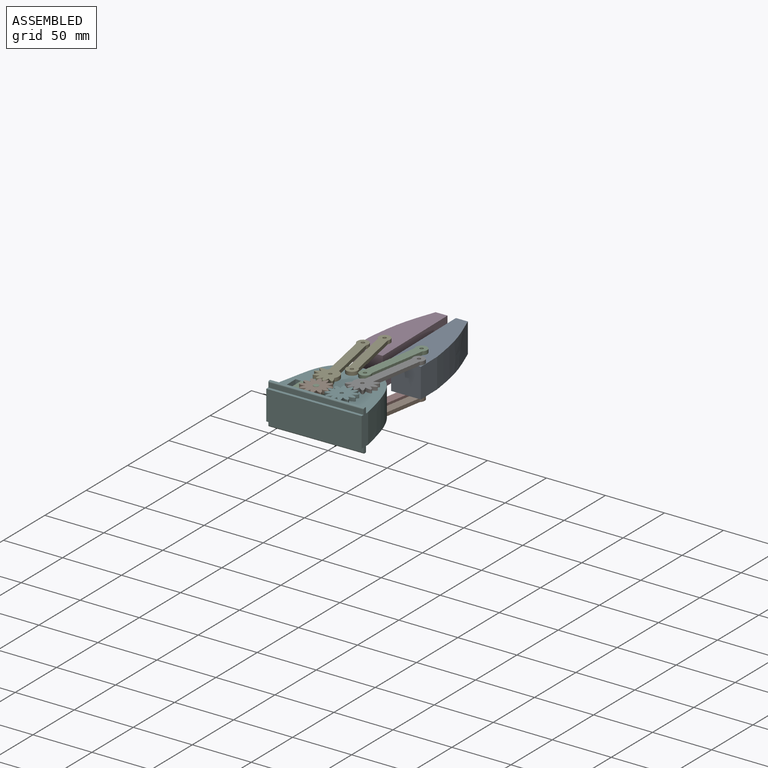
[diagram: assembled view]
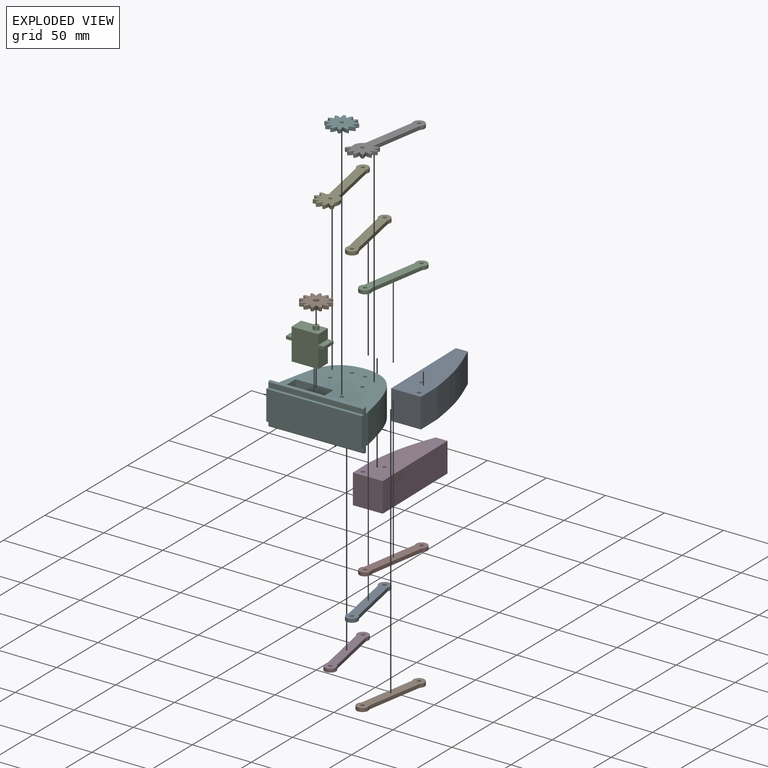
[diagram: exploded view]
GUIDED TOUR — MATED ASSEMBLY (Onshape document 4a42c423ff8570daccb39947, AutoMate assembly 4a42c423ff8570daccb39947_ed752e8bc00205b578661c52_602a29fdc4c7ccb54e213092_default)

This assembly has 14 components, labeled P0..P13 below (a component is one placed occurrence of a part; the same part can appear more than once), held together by 19 mates. A mate is a constraint between two components; its type names the relative motion it leaves free:
  FASTENED — locks the two components together rigidly (no relative motion),
  REVOLUTE — leaves rotation about the listed axis free (a hinge).
Axis/direction vectors are unit vectors and 'through' points are millimeter coordinates, both in the assembly's world frame.

MATES
  1. REVOLUTE "Revolute 11": P7 <-> P5, axis (0.000, 0.000, 1.000) through (8.56, -24.51, -53.41) mm
  2. REVOLUTE "Revolute 4": P8 <-> P11, axis (0.000, 0.000, 1.000) through (-13.23, 30.29, -53.41) mm
  3. REVOLUTE "Revolute 6": P4 <-> P5, axis (0.000, 0.000, -1.000) through (-10.23, -39.77, -28.41) mm
  4. FASTENED "Fastened 1": P10 <-> P5, direction (0.000, 0.000, 1.000) through (-1.37, -55.25, -39.21) mm
  5. REVOLUTE "Revolute 5": P4 <-> P11, axis (0.000, 0.000, -1.000) through (-21.02, 15.18, -28.41) mm
  6. REVOLUTE "Revolute 12": P8 <-> P5, axis (0.000, 0.000, 1.000) through (-2.44, -24.66, -53.41) mm
  7. REVOLUTE "Revolute 16": P9 <-> P0, axis (0.000, 0.000, 1.000) through (26.03, 15.83, -53.41) mm
  8. REVOLUTE "Revolute 2": P11 <-> P12, axis (0.000, 0.000, 1.000) through (-13.23, 30.29, -28.41) mm
  9. REVOLUTE "Revolute 19": P1 <-> P10, axis (0.000, 0.000, -1.000) through (-7.18, -61.23, -28.41) mm
  10. REVOLUTE "Revolute 8": P6 <-> P0, axis (0.000, 0.000, -1.000) through (26.03, 15.83, -28.41) mm
  11. REVOLUTE "Revolute 14": P3 <-> P11, axis (0.000, 0.000, 1.000) through (-21.02, 15.18, -53.41) mm
  12. REVOLUTE "Revolute 3": P7 <-> P0, axis (0.000, 0.000, 1.000) through (17.83, 30.72, -53.41) mm
  13. REVOLUTE "Revolute 9": P12 <-> P5, axis (0.000, 0.000, -1.000) through (-2.44, -24.66, -28.41) mm
  14. REVOLUTE "Revolute 18": P13 <-> P5, axis (0.000, 0.000, -1.000) through (14.31, -60.93, -28.41) mm
  15. REVOLUTE "Revolute 10": P2 <-> P5, axis (0.000, 0.000, -1.000) through (8.56, -24.51, -28.41) mm
  16. REVOLUTE "Revolute 13": P3 <-> P5, axis (0.000, 0.000, -1.000) through (-10.23, -39.77, -53.41) mm
  17. REVOLUTE "Revolute 1": P2 <-> P0, axis (0.000, 0.000, -1.000) through (17.83, 30.72, -28.41) mm
  18. REVOLUTE "Revolute 7": P6 <-> P5, axis (0.000, 0.000, -1.000) through (16.77, -39.40, -28.41) mm
  19. REVOLUTE "Revolute 15": P9 <-> P5, axis (0.000, 0.000, 1.000) through (16.77, -39.40, -53.41) mm

ASSEMBLY ORDER
  1. P5 — the base component [order verified]
  2. P10 [order verified]
  3. P1 [order verified]
  4. P2 [order verified]
  5. P0 [order verified]
  6. P11 [order verified]
  7. P12 [order verified]
  8. P4 [order verified]
  9. P6 [order verified]
  10. P13 [order verified]
  11. P9 [order verified]
  12. P7 [order verified]
  13. P8 [order verified]
  14. P3 [order verified]
(P1 verified with a relaxed clearance tolerance: the source model stores slight part interference there.)
Order-tag legend:
  [order verified] — this step's position reverses a verified removal order: the component was checked to insert without passing through the ones already placed.

Of the 14 components, 6 carry the full construction recipe — the FeatureScript program that regenerates the part's solid from scratch; the rest are supplied as boundary geometry only.
Because this assembly has more than 12 components, the tour below covers the 12 most significant ones individually (every recipe-attached component first, then the largest by part volume), in assembly order; the remaining 2 are summarized together in a grouped section at the end.
Each toured component is shown spotlighted twice — in the assembled view, then in the exploded view, where a leader line traces a displaced component back to its assembled socket (saturated green if recipe-attached, orange if geometry-only; every other component desaturated gray) — followed by its recipe or geometry summary and the mates that hold it.
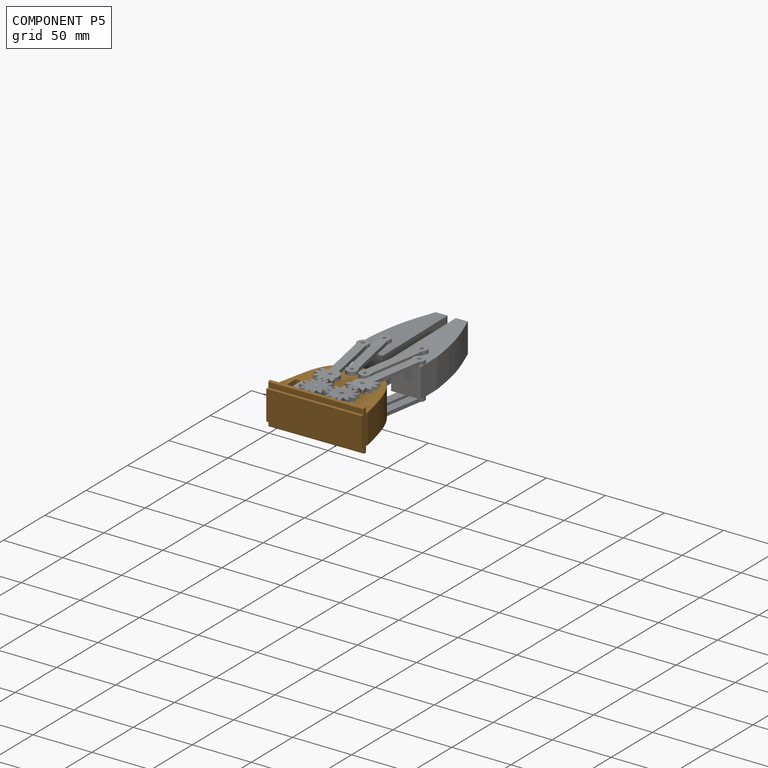
[diagram: component P5 — assembled]
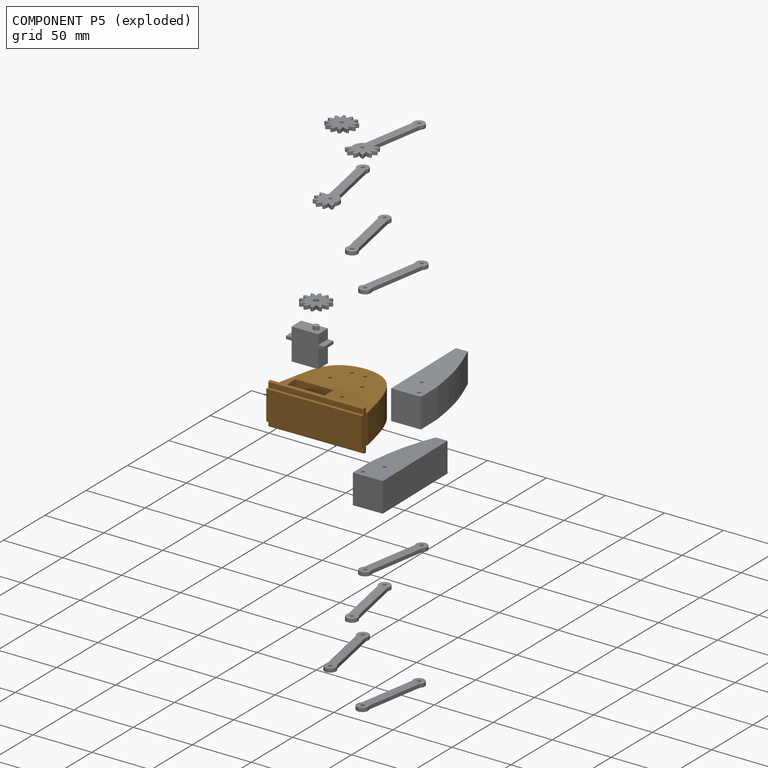
[diagram: component P5 — exploded]
COMPONENT P5 — geometry summary (no construction recipe available for this part):
  bounding box: 80.0 x 67.3 x 35.0 mm
  B-rep topology: 1 solid, 31 faces, 174 edges
  volume: 99086 mm^3 (53% of its bounding box)
Held by: REVOLUTE mate "Revolute 11" to P7; REVOLUTE mate "Revolute 6" to P4; FASTENED mate "Fastened 1" to P10; REVOLUTE mate "Revolute 12" to P8; REVOLUTE mate "Revolute 9" to P12; REVOLUTE mate "Revolute 18" to P13; REVOLUTE mate "Revolute 10" to P2; REVOLUTE mate "Revolute 13" to P3; REVOLUTE mate "Revolute 7" to P6; REVOLUTE mate "Revolute 15" to P9.
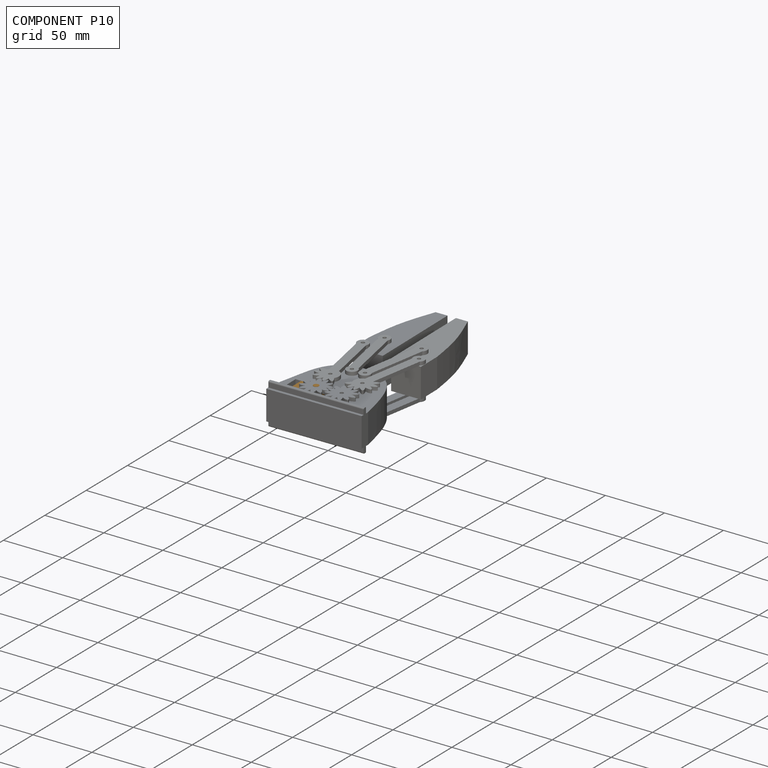
[diagram: component P10 — assembled]
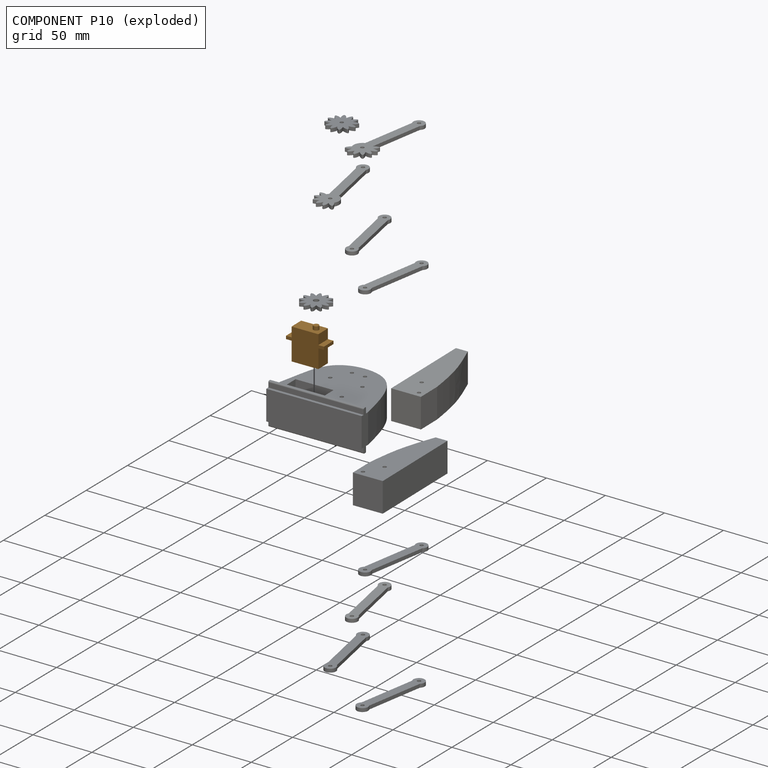
[diagram: component P10 — exploded]
COMPONENT P10 — geometry summary (no construction recipe available for this part):
  bounding box: 31.9 x 29.9 x 11.8 mm
  B-rep topology: 1 solid, 16 faces, 78 edges
  volume: 7419 mm^3 (66% of its bounding box)
  symmetry: mirror-symmetric across its y mid-plane
Held by: FASTENED mate "Fastened 1" to P5; REVOLUTE mate "Revolute 19" to P1.
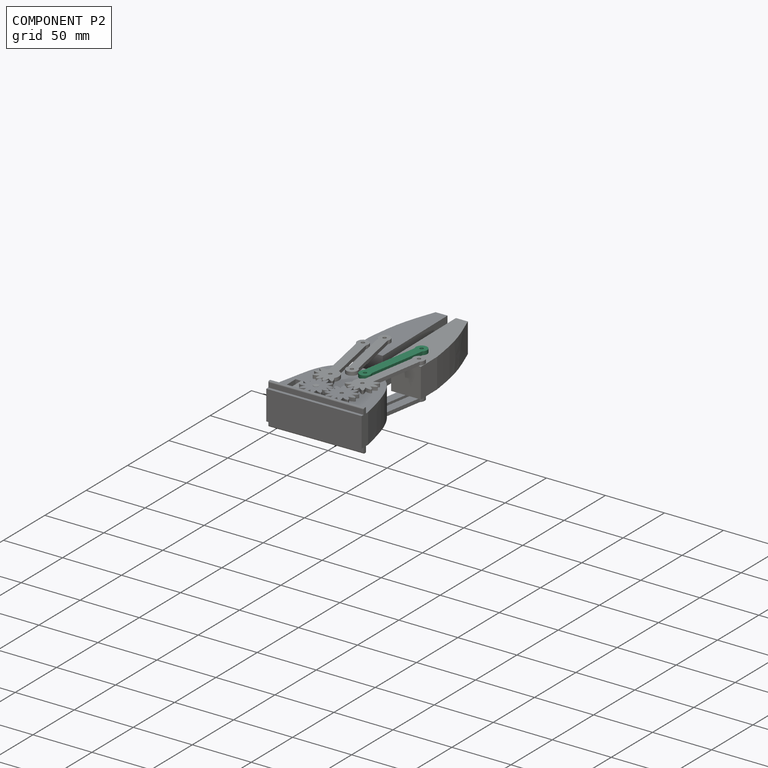
[diagram: component P2 — assembled]
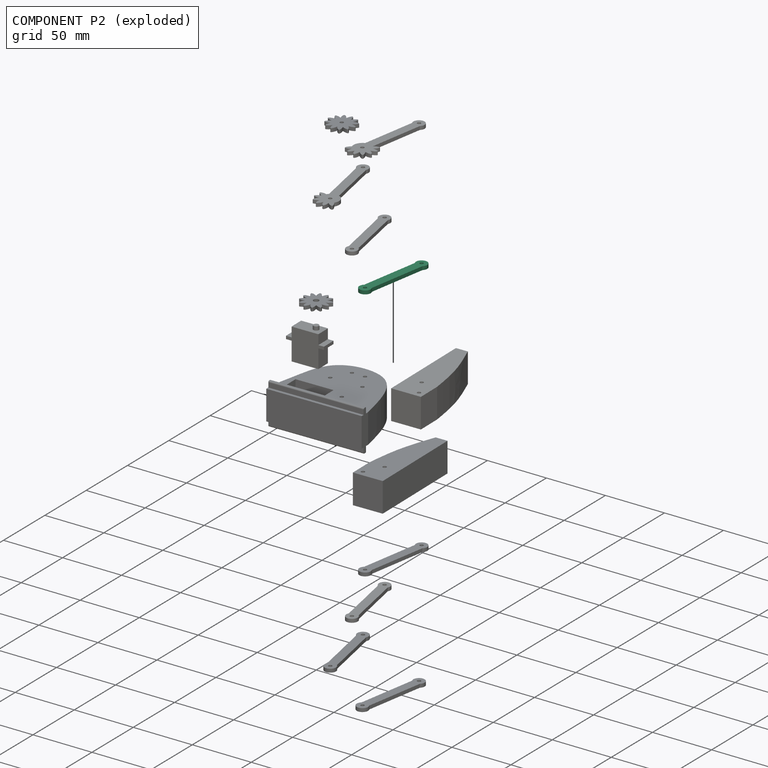
[diagram: component P2 — exploded]
COMPONENT P2 — recipe-attached (CADFS 00431648, mesh-verified: the recipe's output STEP matches this component's geometry to below the mesh-comparison resolution (tessellation chordal tolerance ~0.0996 mm)).
Held by: REVOLUTE mate "Revolute 10" to P5; REVOLUTE mate "Revolute 1" to P0.
Construction recipe (FeatureScript — the CAD program that rebuilds this solid; sketch coordinates are in the units given by the * unit suffixes, e.g. mm):

FeatureScript 1511;
import(path : "onshape/std/geometry.fs", version : "1511.0");
import(path : "onshape/std/common.fs", version : "1511.0");
const mm = millimeter;
const VERTEX = EntityType.VERTEX;
const EDGE = EntityType.EDGE;
const FACE = EntityType.FACE;
const BODY = EntityType.BODY;
function v(x, y){return vector(x, y);}
function OD(order){return orderDisambiguation(order);}
function OSD(set){return originalSetDisambiguation(set);}
function TD(topology){return topologyDisambiguation(topology);}
function TDD(query){return trueDependencyDisambiguation(query);}
function sQuery(a, b, c) {return sketchEntityQuery(a, b, c);}

annotation { "Feature Type Name" : "Feature", "Feature Type Description" : "" }
export const myFeature = defineFeature(function(context is Context, id is Id, definition is map)
    precondition{}
    {
        {
            var Q0;
            Q0=qCreatedBy(makeId("Top.planeOp"),FACE);
            var sketch = newSketch(context, id + "F0", { "sketchPlane" : qUnion([Q0])});
            skLineSegment(sketch, "E0.bottom", {"start": v(0, 0) * mm, "end": v(7.5, 0) * mm, "construction": true});
            skLineSegment(sketch, "E0.top", {"start": v(0, 50) * mm, "end": v(7.5, 50) * mm, "construction": true});
            skLineSegment(sketch, "E0.left", {"start": v(0, 0) * mm, "end": v(0, 50) * mm});
            skLineSegment(sketch, "E0.right", {"start": v(7.5, 0) * mm, "end": v(7.5, 50) * mm});
            skLineSegment(sketch, "E1", {"start": v(3.75, 0) * mm, "end": v(3.75, -3) * mm, "construction": true});
            skArc(sketch, "E2", {"start": v(0, 0) * mm, "mid": v(3.75, -7.8) * mm, "end": v(7.5, 0) * mm});
            skArc(sketch, "E3", {"start": v(7.5, 0) * mm, "mid": v(3.75, 1.8) * mm, "end": v(0, 0) * mm, "construction": true});
            skCircle(sketch, "E4", {"center": v(3.75, -3) * mm, "radius": 1.5 * mm});
            skLineSegment(sketch, "E5", {"start": v(3.75, 50) * mm, "end": v(3.75, 53) * mm, "construction": true});
            skCircle(sketch, "E6", {"center": v(3.75, 53) * mm, "radius": 1.5 * mm});
            skArc(sketch, "E7", {"start": v(0, 50) * mm, "mid": v(3.75, 48.2) * mm, "end": v(7.5, 50) * mm, "construction": true});
            skArc(sketch, "E8", {"start": v(7.5, 50) * mm, "mid": v(3.75, 57.8) * mm, "end": v(0, 50) * mm});
            skSolve(sketch);
        }
        {
            var Q0;
            Q0=makeQuery(id+"F0.imprint","IMPRINT",FACE,{"disambiguationData":[TD([[makeQuery(id+"F0.imprint","IMPRINT",EDGE,{"derivedFrom":sQuery(id+"F0.wireOp",EDGE,"E0.left")}),-1.0]])]});
            extrude(context, id + "F1", {"entities" : qUnion([Q0]), "depth" : 3 * mm});
        }
    });
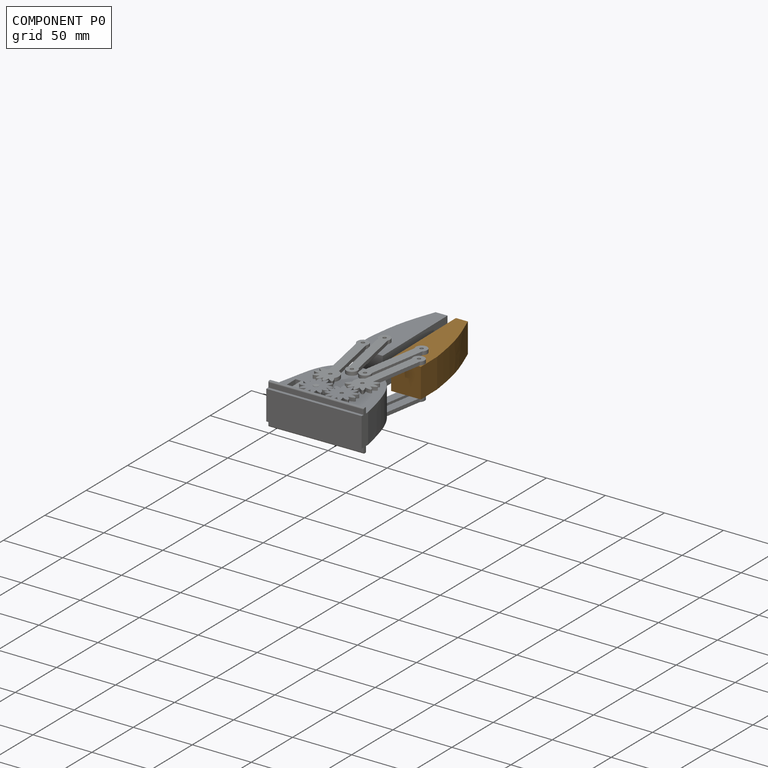
[diagram: component P0 — assembled]
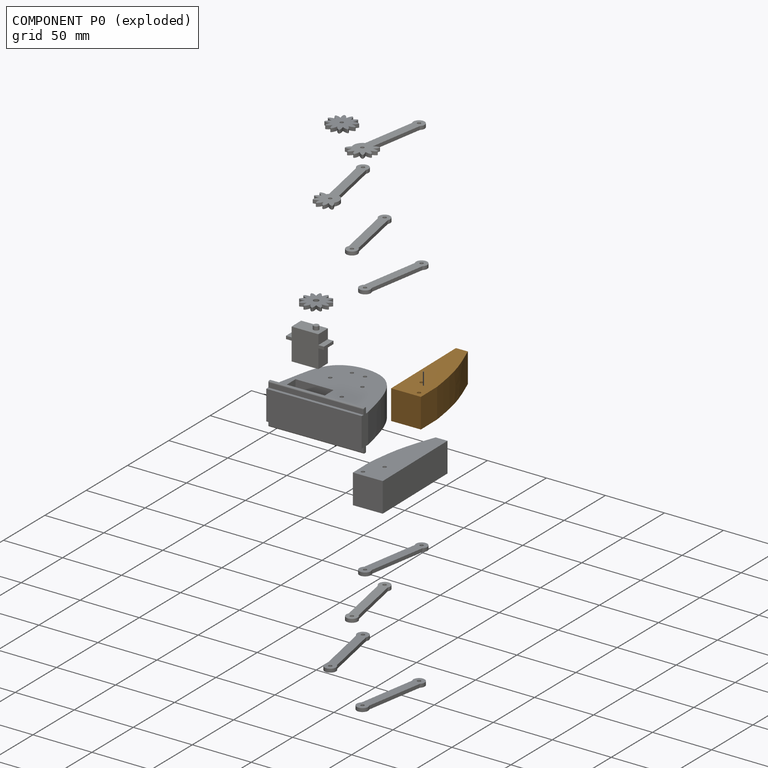
[diagram: component P0 — exploded]
COMPONENT P0 — geometry summary (no construction recipe available for this part):
  bounding box: 80.0 x 25.0 x 25.0 mm
  B-rep topology: 1 solid, 9 faces, 42 edges
  volume: 40740 mm^3 (81% of its bounding box)
  symmetry: mirror-symmetric across its z mid-plane
Held by: REVOLUTE mate "Revolute 16" to P9; REVOLUTE mate "Revolute 8" to P6; REVOLUTE mate "Revolute 3" to P7; REVOLUTE mate "Revolute 1" to P2.
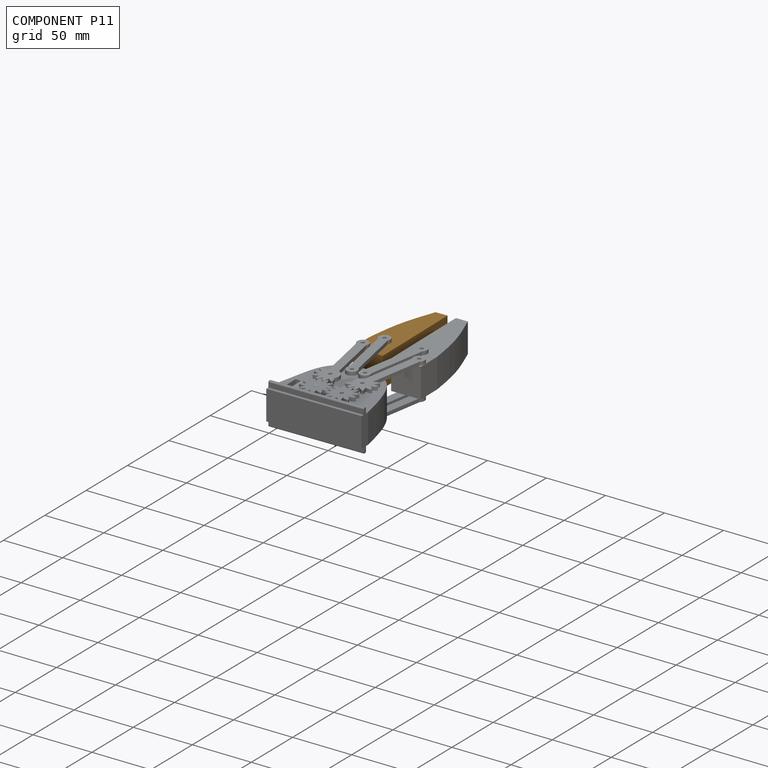
[diagram: component P11 — assembled]
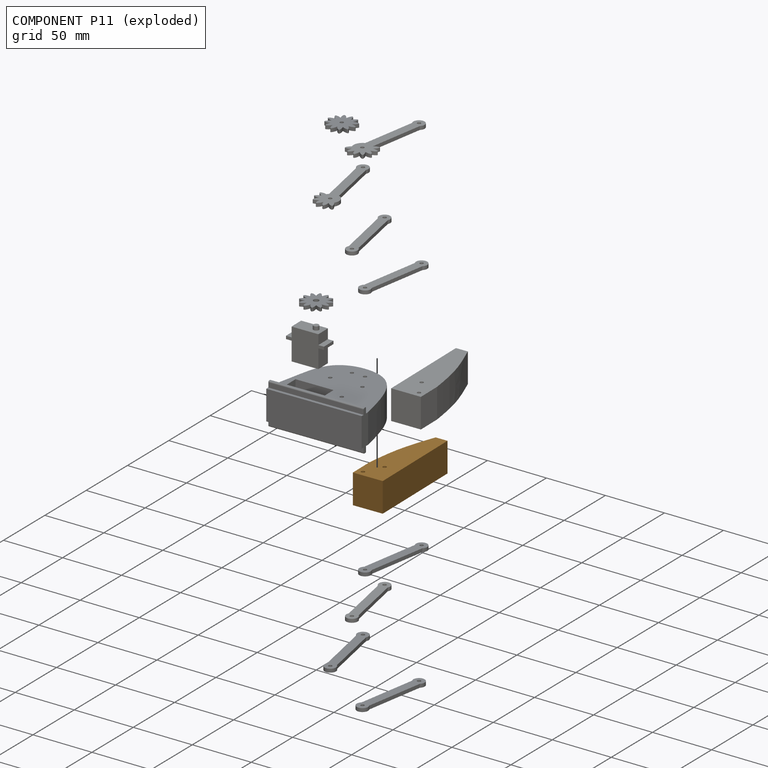
[diagram: component P11 — exploded]
COMPONENT P11 — geometry summary (no construction recipe available for this part):
  bounding box: 80.0 x 25.0 x 25.0 mm
  B-rep topology: 1 solid, 9 faces, 42 edges
  volume: 40740 mm^3 (81% of its bounding box)
  symmetry: mirror-symmetric across its z mid-plane
Held by: REVOLUTE mate "Revolute 4" to P8; REVOLUTE mate "Revolute 5" to P4; REVOLUTE mate "Revolute 2" to P12; REVOLUTE mate "Revolute 14" to P3.
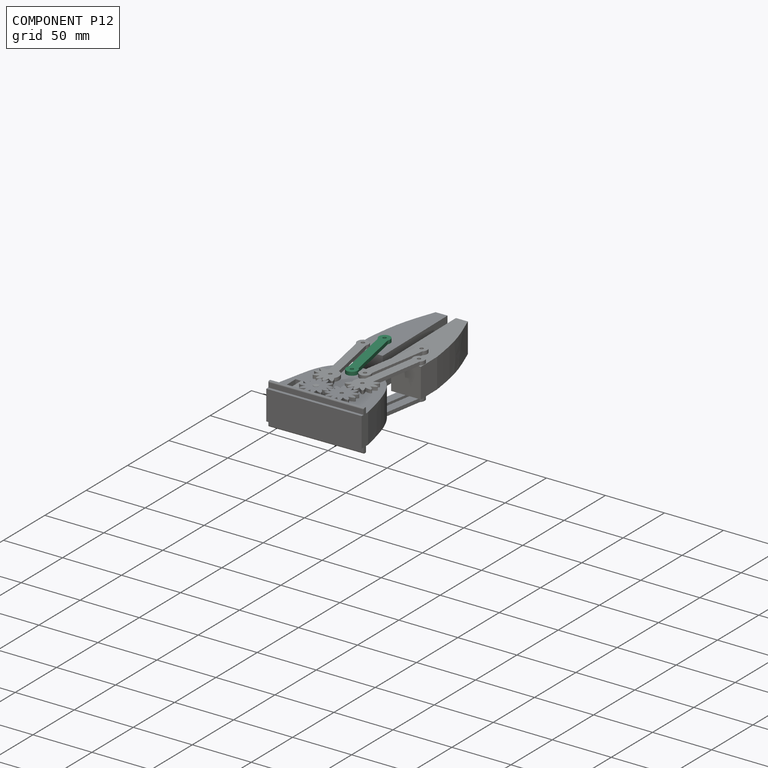
[diagram: component P12 — assembled]
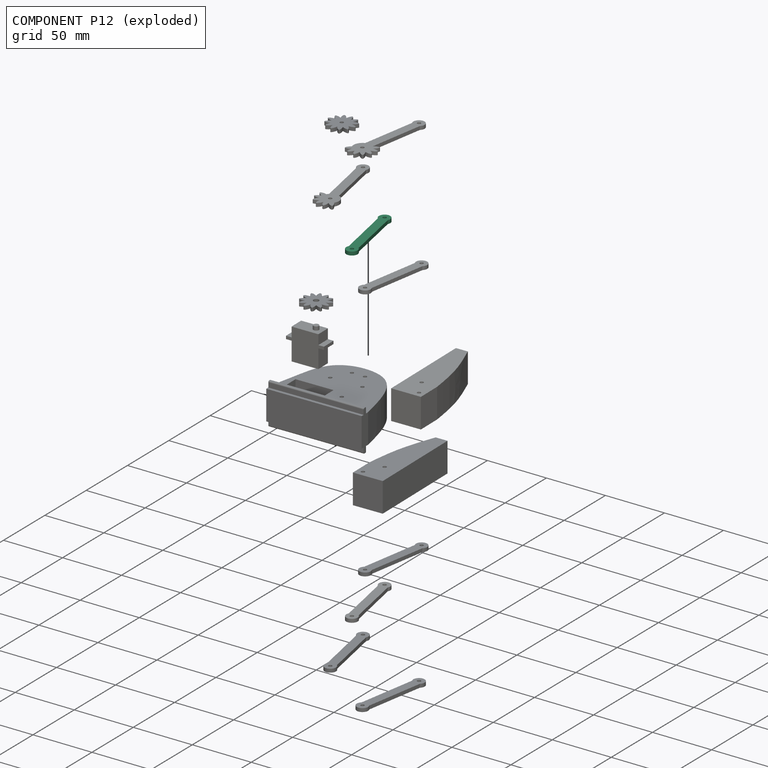
[diagram: component P12 — exploded]
COMPONENT P12 — same part as P2 (CADFS 00431648); its construction recipe is shown at P2.
Held by: REVOLUTE mate "Revolute 2" to P11; REVOLUTE mate "Revolute 9" to P5.
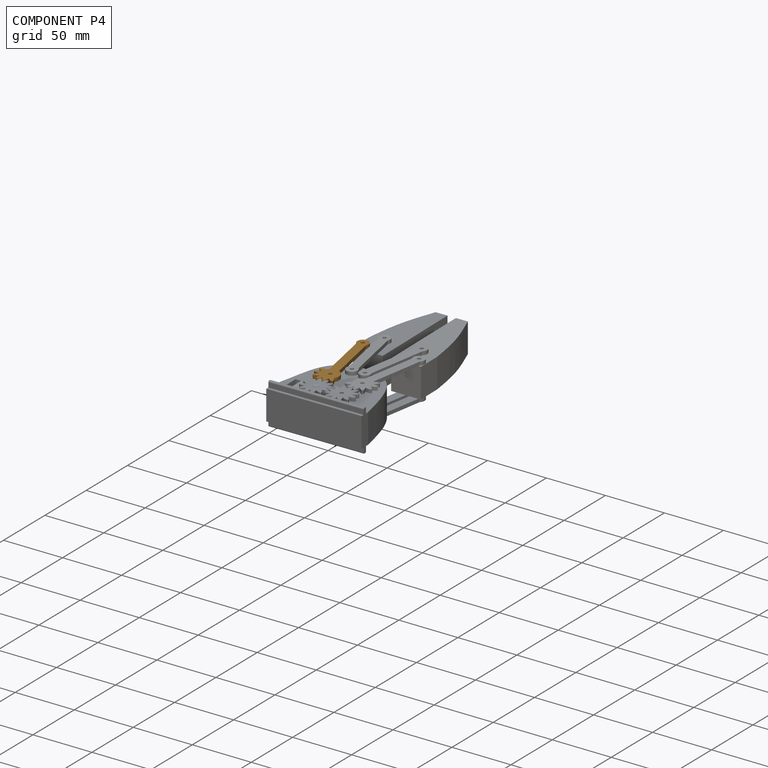
[diagram: component P4 — assembled]
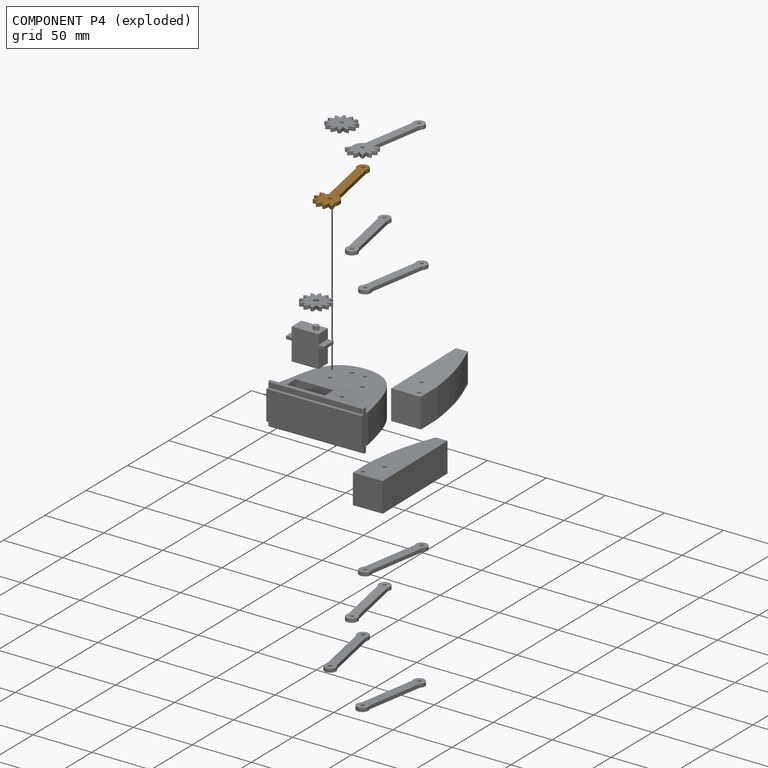
[diagram: component P4 — exploded]
COMPONENT P4 — geometry summary (no construction recipe available for this part):
  bounding box: 73.1 x 19.8 x 3.0 mm
  B-rep topology: 1 solid, 15 faces, 78 edges
  volume: 1953 mm^3 (45% of its bounding box)
  symmetry: mirror-symmetric across its z mid-plane
Held by: REVOLUTE mate "Revolute 6" to P5; REVOLUTE mate "Revolute 5" to P11.
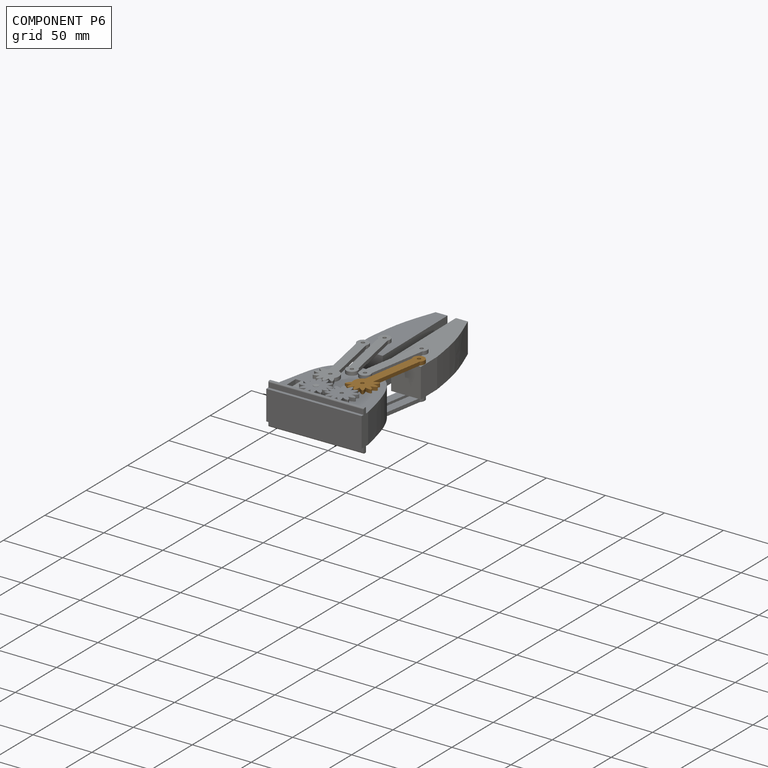
[diagram: component P6 — assembled]
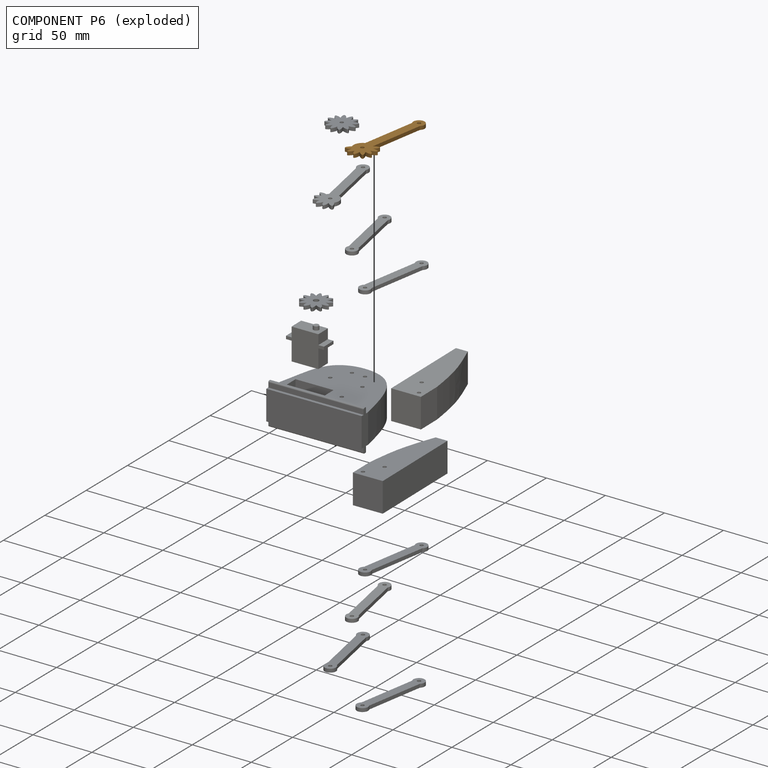
[diagram: component P6 — exploded]
COMPONENT P6 — geometry summary (no construction recipe available for this part):
  bounding box: 72.7 x 20.8 x 3.0 mm
  B-rep topology: 1 solid, 15 faces, 78 edges
  volume: 1995 mm^3 (44% of its bounding box)
  symmetry: mirror-symmetric across its z mid-plane
Held by: REVOLUTE mate "Revolute 8" to P0; REVOLUTE mate "Revolute 7" to P5.
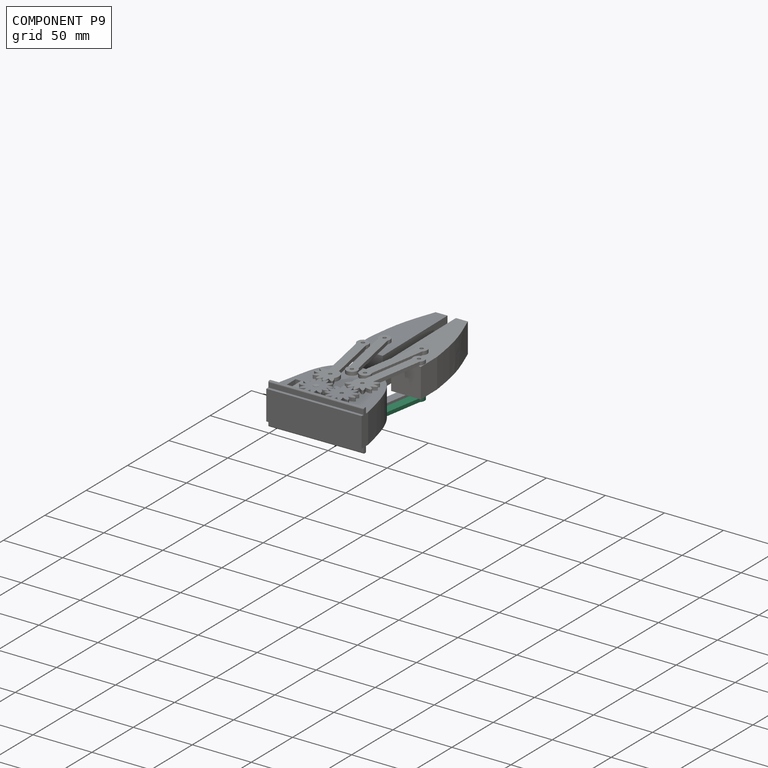
[diagram: component P9 — assembled]
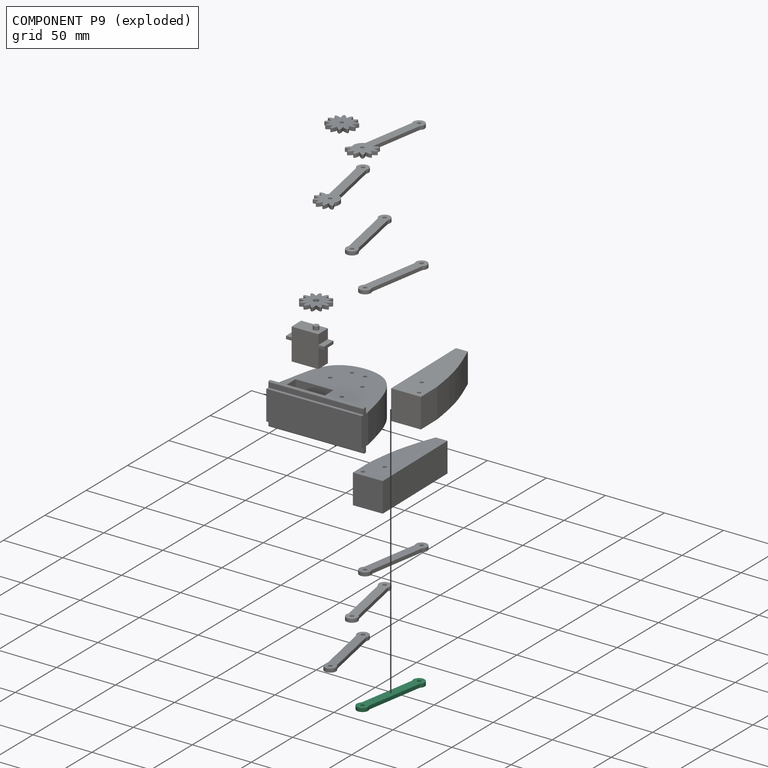
[diagram: component P9 — exploded]
COMPONENT P9 — same part as P2 (CADFS 00431648); its construction recipe is shown at P2.
Held by: REVOLUTE mate "Revolute 16" to P0; REVOLUTE mate "Revolute 15" to P5.
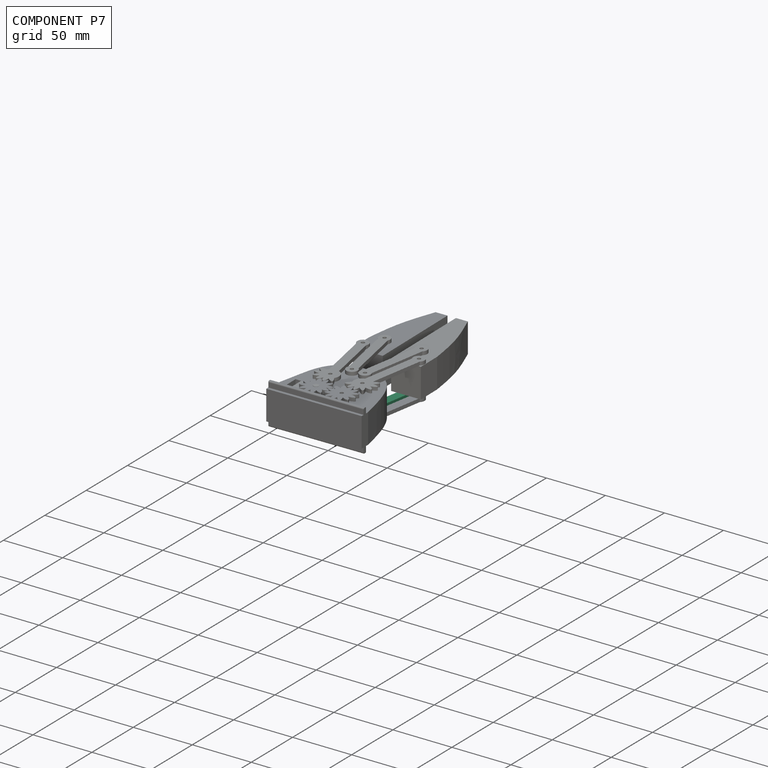
[diagram: component P7 — assembled]
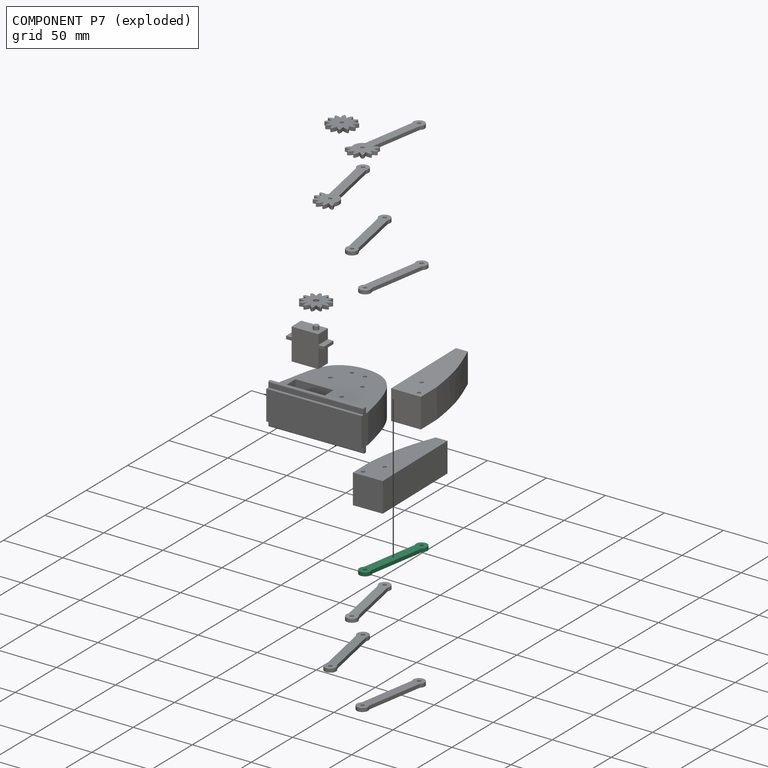
[diagram: component P7 — exploded]
COMPONENT P7 — same part as P2 (CADFS 00431648); its construction recipe is shown at P2.
Held by: REVOLUTE mate "Revolute 11" to P5; REVOLUTE mate "Revolute 3" to P0.
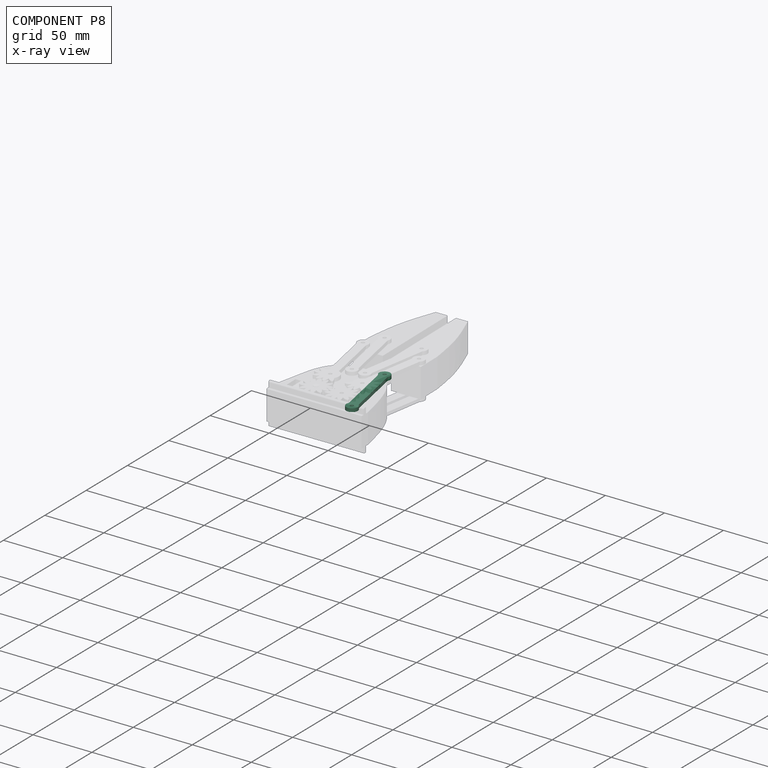
[diagram: component P8 — x-ray view]
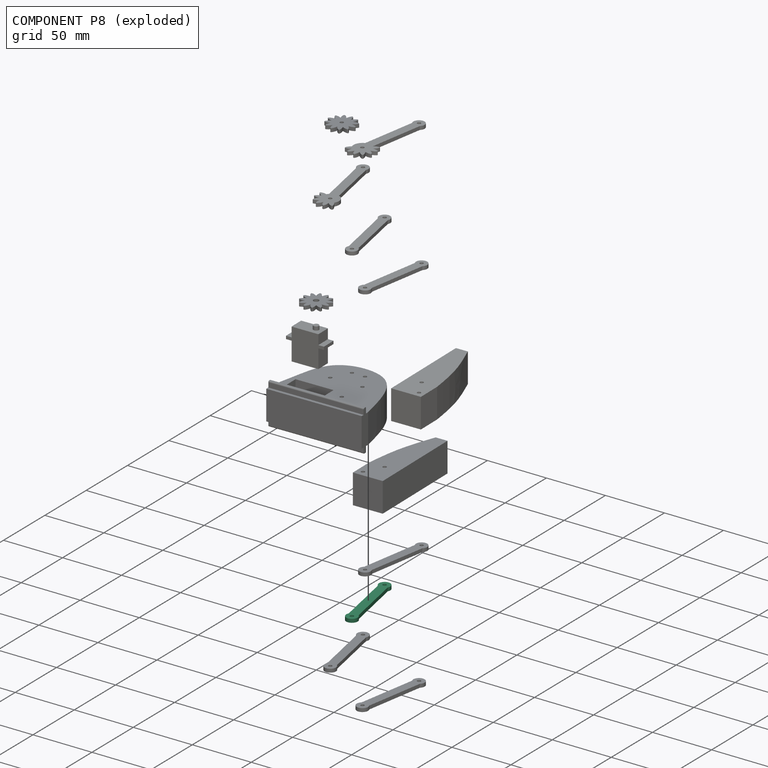
[diagram: component P8 — exploded]
COMPONENT P8 — same part as P2 (CADFS 00431648); its construction recipe is shown at P2.
Held by: REVOLUTE mate "Revolute 4" to P11; REVOLUTE mate "Revolute 12" to P5.
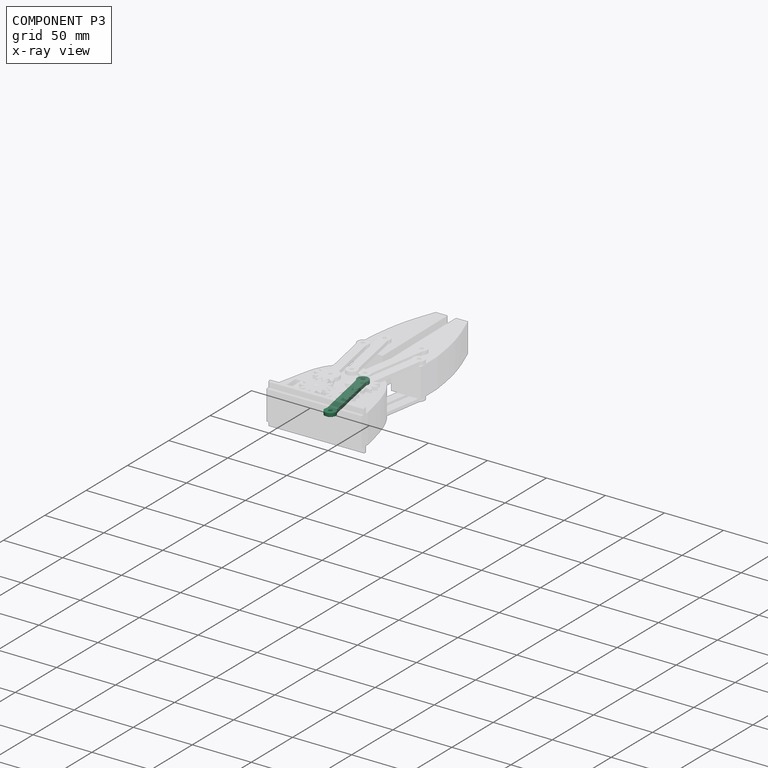
[diagram: component P3 — x-ray view]
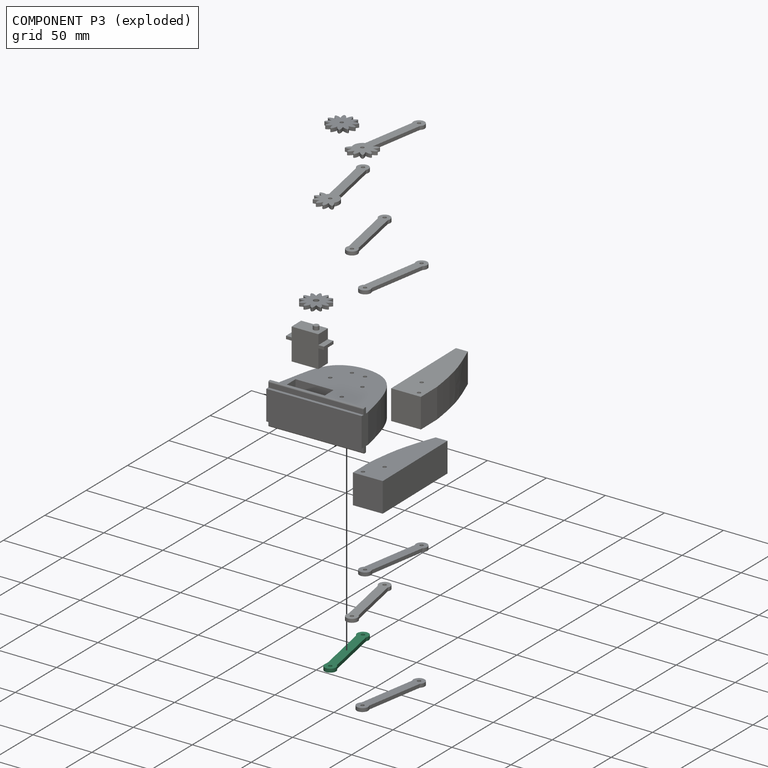
[diagram: component P3 — exploded]
COMPONENT P3 — same part as P2 (CADFS 00431648); its construction recipe is shown at P2.
Held by: REVOLUTE mate "Revolute 14" to P11; REVOLUTE mate "Revolute 13" to P5.
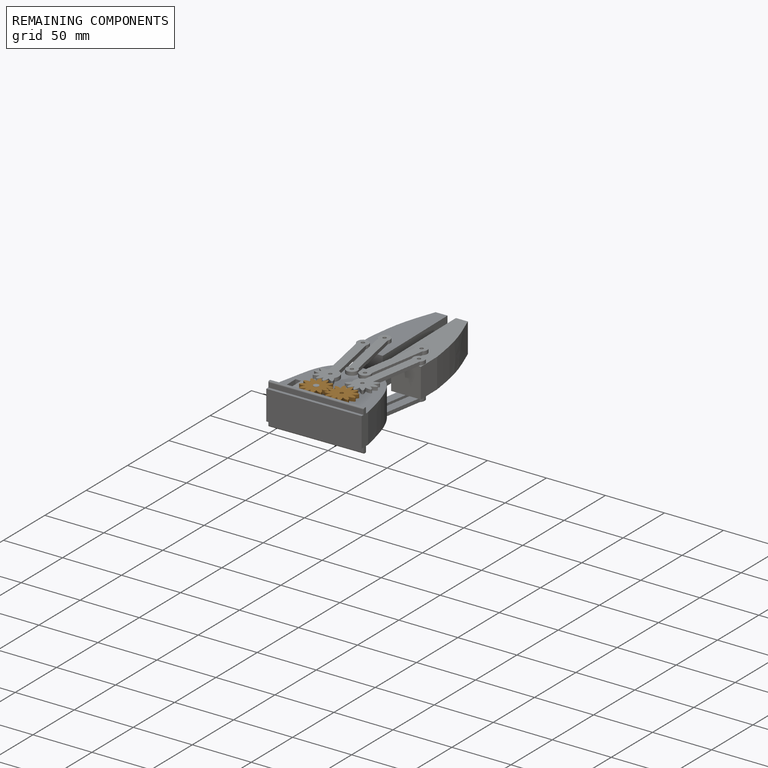
[diagram: remaining components — assembled]
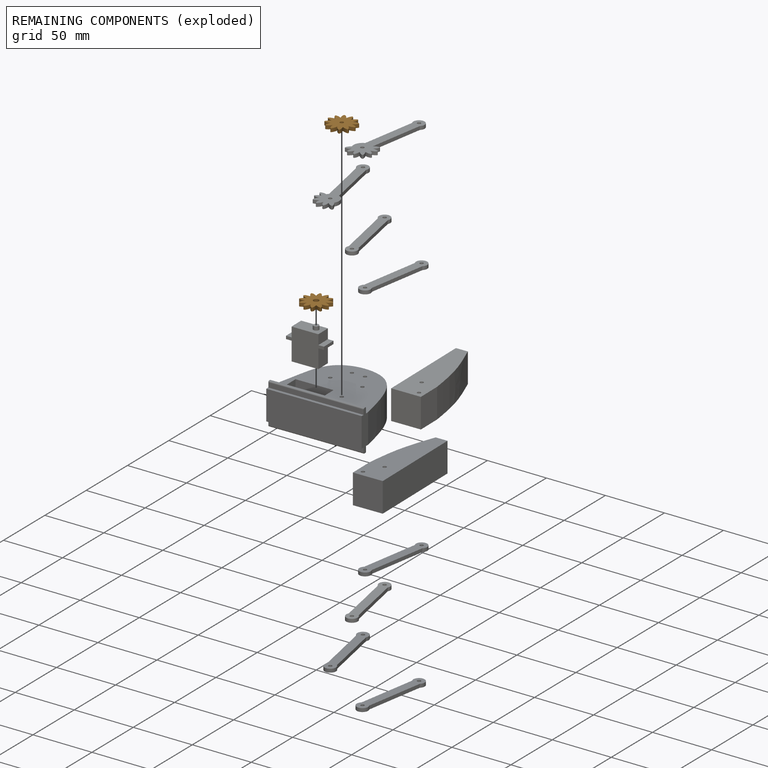
[diagram: remaining components — exploded]
REMAINING COMPONENTS (grouped) — the 2 components below fall outside the per-component tour by the significance rule stated above; both spotlight views highlight the whole group.
  P1: bounding box 24.6 x 24.6 x 3.0 mm, volume 972 mm^3. Held by: REVOLUTE mate "Revolute 19" to P10.
  P13: bounding box 24.6 x 24.6 x 3.0 mm, volume 1000 mm^3. Held by: REVOLUTE mate "Revolute 18" to P5.
PROVENANCE & LICENSES
Assembly (occurrences, transforms, mates, per-part STEP geometry): AutoMate dataset, Zenodo record 7776208, CC0.
Construction recipes: CADFS (HuggingFace VladPyatov/CADFS, CC-BY-4.0, layered over the ABC dataset), FeatureScript reconstruction programs keyed by ABC model id.
Join: ABC meta listings map ABC model id -> Onshape documentId; within a shared document, parts are matched by geometric signature (bounding-box dims + volume at 0.1% relative tolerance, exact B-rep face/solid counts).
Verification: 6 of this assembly's 14 components carry a recipe attachment, and every attachment is mesh-verified: the CADFS STEP and the AutoMate member STEP were compared as meshes in their shared local frame (symmetric sampled-point-to-mesh distance); worst across the 6 attachments: below the mesh-comparison resolution (tessellation chordal tolerance ~0.0996 mm) on a 66 mm part.
Renders: orthographic iso camera (az 35 / el 25); the floor grid conveys scale (grid pitch printed in each image; no ruler). In the exploded view each component is displaced by its stored offset vector: the offsets alone carry the explosion direction (mate normal/axis signs are not orientation cues and do not encode it), and separation distances are assigned per mate-chain, not proportionally to assembly-order depth.
